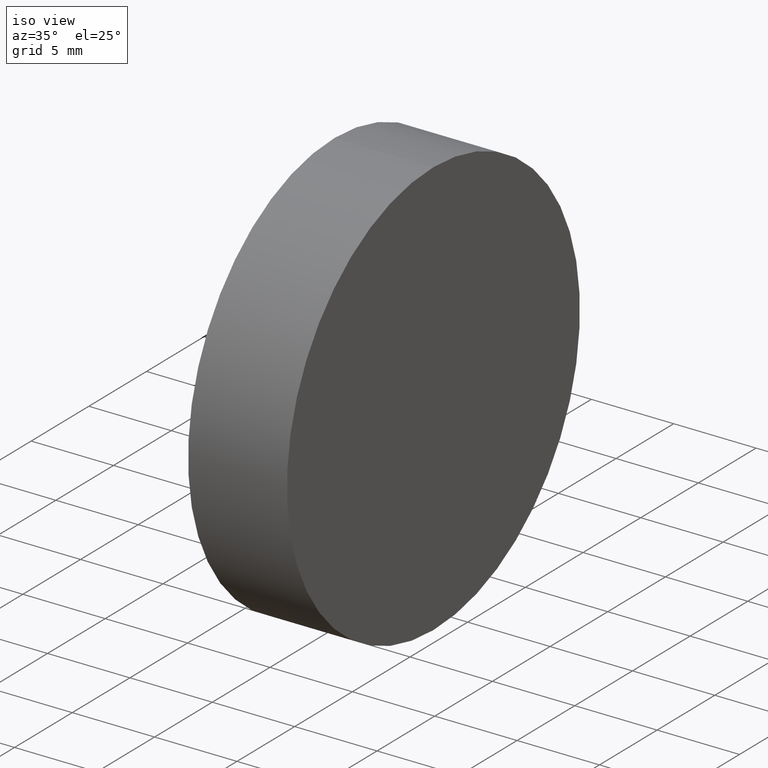
[diagram: clean part render]
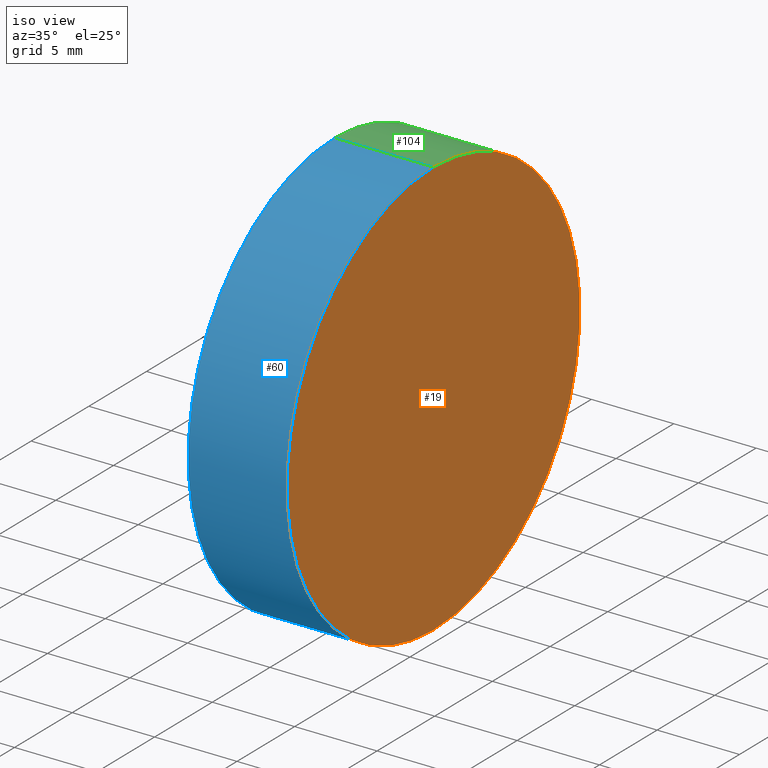
[diagram: same view with three faces highlighted in distinct colors, each labeled with its STEP entity id]
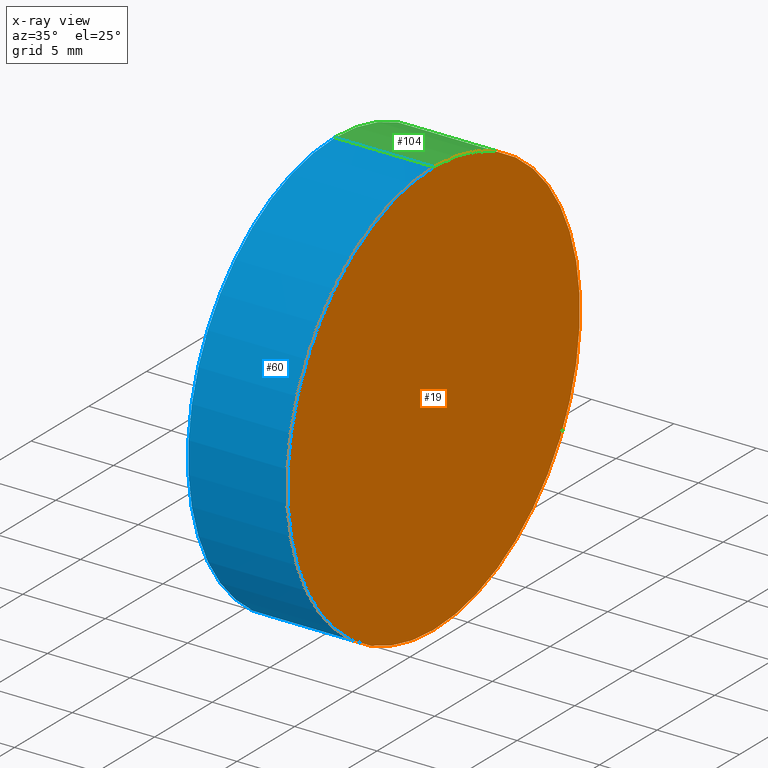
[diagram: x-ray of the same camera — body ghosted, the three highlighted faces saturated]
A machine part, iso view with three faces highlighted in distinct colors.
The next image is the same camera in x-ray (body ghosted, the three faces saturated) — at least one of them is partly hidden behind the body in this view.
Their STEP definitions:

[orange] entity #19 — the highlighted planar face has unit normal (-1, 0, -0).
#1 = EDGE_LOOP ( 'NONE', ( #56, #121 ) ) ;
#6 = CARTESIAN_POINT ( 'NONE',  ( 274.8168258709342800, 77.29317934901541800, 12.70000000000000300 ) ) ;
#11 = DIRECTION ( 'NONE',  ( 0.0000000000000000000, 0.0000000000000000000, 1.000000000000000000 ) ) ;
#14 = CARTESIAN_POINT ( 'NONE',  ( 274.8168258709342800, 77.29317934901541800, 0.0000000000000000000 ) ) ;
#19 = ADVANCED_FACE ( 'NONE', ( #101 ), #127, .F. ) ;
#21 = CARTESIAN_POINT ( 'NONE',  ( 274.8168258709342800, 77.29317934901541800, 0.0000000000000000000 ) ) ;
#29 = DIRECTION ( 'NONE',  ( -1.000000000000000000, -0.0000000000000000000, -0.0000000000000000000 ) ) ;
#31 = VERTEX_POINT ( 'NONE', #57 ) ;
#33 = DIRECTION ( 'NONE',  ( -1.000000000000000000, 0.0000000000000000000, -0.0000000000000000000 ) ) ;
#46 = DIRECTION ( 'NONE',  ( -0.0000000000000000000, 0.0000000000000000000, 1.000000000000000000 ) ) ;
#47 = CARTESIAN_POINT ( 'NONE',  ( 274.8168258709342800, 77.29317934901541800, 0.0000000000000000000 ) ) ;
#56 = ORIENTED_EDGE ( 'NONE', *, *, #139, .F. ) ;
#57 = CARTESIAN_POINT ( 'NONE',  ( 274.8168258709342800, 77.29317934901541800, -12.70000000000000300 ) ) ;
#64 = VERTEX_POINT ( 'NONE', #6 ) ;
#75 = DIRECTION ( 'NONE',  ( 0.0000000000000000000, 0.0000000000000000000, 1.000000000000000000 ) ) ;
#95 = AXIS2_PLACEMENT_3D ( 'NONE', #14, #29, #75 ) ;
#96 = DIRECTION ( 'NONE',  ( -1.000000000000000000, -0.0000000000000000000, -0.0000000000000000000 ) ) ;
#101 = FACE_OUTER_BOUND ( 'NONE', #1, .T. ) ;
#103 = AXIS2_PLACEMENT_3D ( 'NONE', #47, #33, #46 ) ;
#118 = EDGE_CURVE ( 'NONE', #31, #64, #128, .T. ) ;
#121 = ORIENTED_EDGE ( 'NONE', *, *, #118, .F. ) ;
#122 = AXIS2_PLACEMENT_3D ( 'NONE', #21, #96, #11 ) ;
#127 = PLANE ( 'NONE',  #103 ) ;
#128 = CIRCLE ( 'NONE', #122, 12.70000000000000300 ) ;
#137 = CIRCLE ( 'NONE', #95, 12.70000000000000300 ) ;
#139 = EDGE_CURVE ( 'NONE', #64, #31, #137, .T. ) ;

[blue] entity #60 — the highlighted cylindrical surface (partial cylindrical patch) has radius 12.7 mm, axis along (-1, -0, -0).
#6 = CARTESIAN_POINT ( 'NONE',  ( 274.8168258709342800, 77.29317934901541800, 12.70000000000000300 ) ) ;
#10 = ORIENTED_EDGE ( 'NONE', *, *, #119, .F. ) ;
#11 = DIRECTION ( 'NONE',  ( 0.0000000000000000000, 0.0000000000000000000, 1.000000000000000000 ) ) ;
#12 = LINE ( 'NONE', #40, #94 ) ;
#16 = DIRECTION ( 'NONE',  ( -1.000000000000000000, -0.0000000000000000000, -0.0000000000000000000 ) ) ;
#17 = LINE ( 'NONE', #79, #39 ) ;
#18 = DIRECTION ( 'NONE',  ( 0.0000000000000000000, 0.0000000000000000000, 1.000000000000000000 ) ) ;
#20 = CIRCLE ( 'NONE', #73, 12.70000000000000300 ) ;
#21 = CARTESIAN_POINT ( 'NONE',  ( 274.8168258709342800, 77.29317934901541800, 0.0000000000000000000 ) ) ;
#24 = CARTESIAN_POINT ( 'NONE',  ( 263.0932749704859900, 77.29317934901541800, 0.0000000000000000000 ) ) ;
#26 = CARTESIAN_POINT ( 'NONE',  ( 268.8168258709342200, 77.29317934901541800, -12.70000000000000300 ) ) ;
#31 = VERTEX_POINT ( 'NONE', #57 ) ;
#34 = ORIENTED_EDGE ( 'NONE', *, *, #126, .T. ) ;
#36 = ORIENTED_EDGE ( 'NONE', *, *, #51, .F. ) ;
#39 = VECTOR ( 'NONE', #109, 1000.000000000000000 ) ;
#40 = CARTESIAN_POINT ( 'NONE',  ( 263.0932749704859900, 77.29317934901541800, -12.70000000000000300 ) ) ;
#49 = CYLINDRICAL_SURFACE ( 'NONE', #77, 12.70000000000000300 ) ;
#51 = EDGE_CURVE ( 'NONE', #117, #93, #20, .T. ) ;
#52 = ORIENTED_EDGE ( 'NONE', *, *, #118, .T. ) ;
#57 = CARTESIAN_POINT ( 'NONE',  ( 274.8168258709342800, 77.29317934901541800, -12.70000000000000300 ) ) ;
#60 = ADVANCED_FACE ( 'NONE', ( #131 ), #49, .T. ) ;
#64 = VERTEX_POINT ( 'NONE', #6 ) ;
#73 = AXIS2_PLACEMENT_3D ( 'NONE', #76, #89, #18 ) ;
#76 = CARTESIAN_POINT ( 'NONE',  ( 268.8168258709342200, 77.29317934901541800, 0.0000000000000000000 ) ) ;
#77 = AXIS2_PLACEMENT_3D ( 'NONE', #24, #16, #100 ) ;
#79 = CARTESIAN_POINT ( 'NONE',  ( 263.0932749704859900, 77.29317934901541800, 12.70000000000000300 ) ) ;
#88 = EDGE_LOOP ( 'NONE', ( #10, #52, #34, #36 ) ) ;
#89 = DIRECTION ( 'NONE',  ( -1.000000000000000000, -0.0000000000000000000, -0.0000000000000000000 ) ) ;
#93 = VERTEX_POINT ( 'NONE', #102 ) ;
#94 = VECTOR ( 'NONE', #133, 1000.000000000000000 ) ;
#96 = DIRECTION ( 'NONE',  ( -1.000000000000000000, -0.0000000000000000000, -0.0000000000000000000 ) ) ;
#100 = DIRECTION ( 'NONE',  ( 0.0000000000000000000, 0.0000000000000000000, 1.000000000000000000 ) ) ;
#102 = CARTESIAN_POINT ( 'NONE',  ( 268.8168258709342200, 77.29317934901541800, 12.70000000000000300 ) ) ;
#109 = DIRECTION ( 'NONE',  ( -1.000000000000000000, -0.0000000000000000000, -0.0000000000000000000 ) ) ;
#117 = VERTEX_POINT ( 'NONE', #26 ) ;
#118 = EDGE_CURVE ( 'NONE', #31, #64, #128, .T. ) ;
#119 = EDGE_CURVE ( 'NONE', #31, #117, #12, .T. ) ;
#122 = AXIS2_PLACEMENT_3D ( 'NONE', #21, #96, #11 ) ;
#126 = EDGE_CURVE ( 'NONE', #64, #93, #17, .T. ) ;
#128 = CIRCLE ( 'NONE', #122, 12.70000000000000300 ) ;
#131 = FACE_OUTER_BOUND ( 'NONE', #88, .T. ) ;
#133 = DIRECTION ( 'NONE',  ( -1.000000000000000000, -0.0000000000000000000, -0.0000000000000000000 ) ) ;

[green] entity #104 — the highlighted cylindrical surface (partial cylindrical patch) has radius 12.7 mm, axis along (-1, -0, -0).
#6 = CARTESIAN_POINT ( 'NONE',  ( 274.8168258709342800, 77.29317934901541800, 12.70000000000000300 ) ) ;
#8 = ORIENTED_EDGE ( 'NONE', *, *, #126, .F. ) ;
#9 = ORIENTED_EDGE ( 'NONE', *, *, #129, .F. ) ;
#12 = LINE ( 'NONE', #40, #94 ) ;
#13 = CARTESIAN_POINT ( 'NONE',  ( 263.0932749704859900, 77.29317934901541800, 0.0000000000000000000 ) ) ;
#14 = CARTESIAN_POINT ( 'NONE',  ( 274.8168258709342800, 77.29317934901541800, 0.0000000000000000000 ) ) ;
#17 = LINE ( 'NONE', #79, #39 ) ;
#26 = CARTESIAN_POINT ( 'NONE',  ( 268.8168258709342200, 77.29317934901541800, -12.70000000000000300 ) ) ;
#29 = DIRECTION ( 'NONE',  ( -1.000000000000000000, -0.0000000000000000000, -0.0000000000000000000 ) ) ;
#31 = VERTEX_POINT ( 'NONE', #57 ) ;
#37 = FACE_OUTER_BOUND ( 'NONE', #91, .T. ) ;
#39 = VECTOR ( 'NONE', #109, 1000.000000000000000 ) ;
#40 = CARTESIAN_POINT ( 'NONE',  ( 263.0932749704859900, 77.29317934901541800, -12.70000000000000300 ) ) ;
#57 = CARTESIAN_POINT ( 'NONE',  ( 274.8168258709342800, 77.29317934901541800, -12.70000000000000300 ) ) ;
#64 = VERTEX_POINT ( 'NONE', #6 ) ;
#65 = DIRECTION ( 'NONE',  ( 0.0000000000000000000, 0.0000000000000000000, 1.000000000000000000 ) ) ;
#67 = CARTESIAN_POINT ( 'NONE',  ( 268.8168258709342200, 77.29317934901541800, 0.0000000000000000000 ) ) ;
#68 = DIRECTION ( 'NONE',  ( -1.000000000000000000, -0.0000000000000000000, -0.0000000000000000000 ) ) ;
#71 = CYLINDRICAL_SURFACE ( 'NONE', #115, 12.70000000000000300 ) ;
#75 = DIRECTION ( 'NONE',  ( 0.0000000000000000000, 0.0000000000000000000, 1.000000000000000000 ) ) ;
#79 = CARTESIAN_POINT ( 'NONE',  ( 263.0932749704859900, 77.29317934901541800, 12.70000000000000300 ) ) ;
#83 = DIRECTION ( 'NONE',  ( -1.000000000000000000, -0.0000000000000000000, -0.0000000000000000000 ) ) ;
#85 = ORIENTED_EDGE ( 'NONE', *, *, #139, .T. ) ;
#91 = EDGE_LOOP ( 'NONE', ( #85, #125, #9, #8 ) ) ;
#93 = VERTEX_POINT ( 'NONE', #102 ) ;
#94 = VECTOR ( 'NONE', #133, 1000.000000000000000 ) ;
#95 = AXIS2_PLACEMENT_3D ( 'NONE', #14, #29, #75 ) ;
#98 = DIRECTION ( 'NONE',  ( 0.0000000000000000000, 0.0000000000000000000, 1.000000000000000000 ) ) ;
#102 = CARTESIAN_POINT ( 'NONE',  ( 268.8168258709342200, 77.29317934901541800, 12.70000000000000300 ) ) ;
#104 = ADVANCED_FACE ( 'NONE', ( #37 ), #71, .T. ) ;
#105 = AXIS2_PLACEMENT_3D ( 'NONE', #67, #83, #98 ) ;
#108 = CIRCLE ( 'NONE', #105, 12.70000000000000300 ) ;
#109 = DIRECTION ( 'NONE',  ( -1.000000000000000000, -0.0000000000000000000, -0.0000000000000000000 ) ) ;
#115 = AXIS2_PLACEMENT_3D ( 'NONE', #13, #68, #65 ) ;
#117 = VERTEX_POINT ( 'NONE', #26 ) ;
#119 = EDGE_CURVE ( 'NONE', #31, #117, #12, .T. ) ;
#125 = ORIENTED_EDGE ( 'NONE', *, *, #119, .T. ) ;
#126 = EDGE_CURVE ( 'NONE', #64, #93, #17, .T. ) ;
#129 = EDGE_CURVE ( 'NONE', #93, #117, #108, .T. ) ;
#133 = DIRECTION ( 'NONE',  ( -1.000000000000000000, -0.0000000000000000000, -0.0000000000000000000 ) ) ;
#137 = CIRCLE ( 'NONE', #95, 12.70000000000000300 ) ;
#139 = EDGE_CURVE ( 'NONE', #64, #31, #137, .T. ) ;